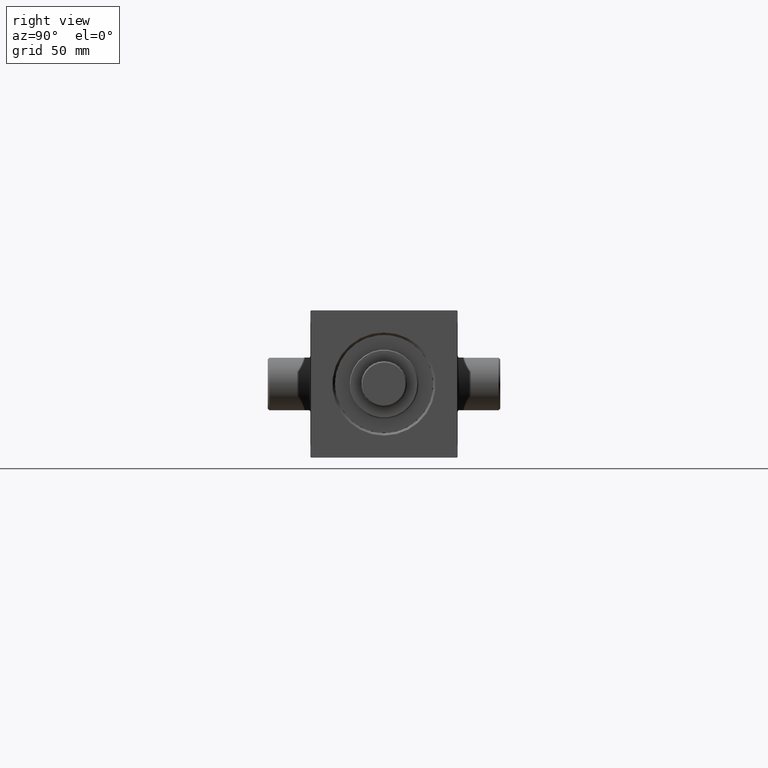
[diagram: clean part render]
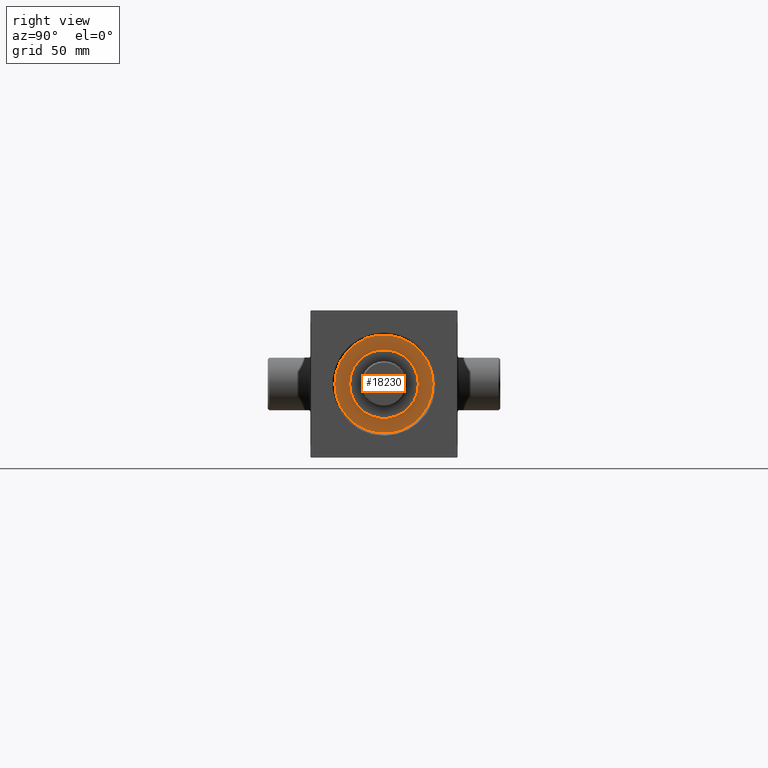
[diagram: same view with one face highlighted and labeled with its STEP entity id]
A machine part, right view. The second image highlights one B-rep face of the part: STEP entity #18230.
In plain terms, the highlighted planar face has unit normal (1, 0, 0).
Its self-contained STEP definition (entity closure, byte-faithful):
#669 = ORIENTED_EDGE ( 'NONE', *, *, #15305, .F. ) ;
#907 = EDGE_CURVE ( 'NONE', #25124, #30821, #35209, .T. ) ;
#2016 = FACE_OUTER_BOUND ( 'NONE', #9283, .T. ) ;
#2907 = DIRECTION ( 'NONE',  ( 0.000000000000000000, 0.000000000000000000, 1.000000000000000000 ) ) ;
#3394 = CARTESIAN_POINT ( 'NONE',  ( -21.00000000000000000, 0.000000000000000000, 26.69999999999999929 ) ) ;
#4190 = VERTEX_POINT ( 'NONE', #37666 ) ;
#4619 = CIRCLE ( 'NONE', #23454, 21.00000000000000000 ) ;
#6250 = EDGE_CURVE ( 'NONE', #7313, #4190, #27861, .T. ) ;
#7260 = ORIENTED_EDGE ( 'NONE', *, *, #6250, .F. ) ;
#7313 = VERTEX_POINT ( 'NONE', #3394 ) ;
#7981 = CARTESIAN_POINT ( 'NONE',  ( 0.000000000000000000, 0.000000000000000000, 26.69999999999999929 ) ) ;
#8436 = DIRECTION ( 'NONE',  ( 0.000000000000000000, 0.000000000000000000, 1.000000000000000000 ) ) ;
#9115 = CARTESIAN_POINT ( 'NONE',  ( 0.000000000000000000, 0.000000000000000000, 26.69999999999999929 ) ) ;
#9283 = EDGE_LOOP ( 'NONE', ( #30496, #37522 ) ) ;
#11498 = DIRECTION ( 'NONE',  ( 1.000000000000000000, 0.000000000000000000, 0.000000000000000000 ) ) ;
#11701 = EDGE_LOOP ( 'NONE', ( #7260, #669 ) ) ;
#15305 = EDGE_CURVE ( 'NONE', #4190, #7313, #4619, .T. ) ;
#15372 = CIRCLE ( 'NONE', #41807, 30.00000000000000000 ) ;
#16417 = PLANE ( 'NONE',  #22078 ) ;
#18230 = ADVANCED_FACE ( 'NONE', ( #41483, #2016 ), #16417, .T. ) ;
#19283 = DIRECTION ( 'NONE',  ( 0.000000000000000000, 0.000000000000000000, 1.000000000000000000 ) ) ;
#20855 = CARTESIAN_POINT ( 'NONE',  ( 0.000000000000000000, 0.000000000000000000, 26.69999999999999929 ) ) ;
#22078 = AXIS2_PLACEMENT_3D ( 'NONE', #9115, #23506, #45276 ) ;
#22725 = DIRECTION ( 'NONE',  ( 0.000000000000000000, 0.000000000000000000, 1.000000000000000000 ) ) ;
#23454 = AXIS2_PLACEMENT_3D ( 'NONE', #7981, #8436, #37247 ) ;
#23506 = DIRECTION ( 'NONE',  ( 0.000000000000000000, 0.000000000000000000, 1.000000000000000000 ) ) ;
#25124 = VERTEX_POINT ( 'NONE', #44625 ) ;
#27861 = CIRCLE ( 'NONE', #39957, 21.00000000000000000 ) ;
#29112 = DIRECTION ( 'NONE',  ( 1.000000000000000000, 0.000000000000000000, 0.000000000000000000 ) ) ;
#29576 = DIRECTION ( 'NONE',  ( 1.000000000000000000, 0.000000000000000000, 0.000000000000000000 ) ) ;
#30274 = CARTESIAN_POINT ( 'NONE',  ( 0.000000000000000000, 0.000000000000000000, 26.69999999999999929 ) ) ;
#30496 = ORIENTED_EDGE ( 'NONE', *, *, #907, .T. ) ;
#30821 = VERTEX_POINT ( 'NONE', #36590 ) ;
#35209 = CIRCLE ( 'NONE', #39748, 30.00000000000000000 ) ;
#36590 = CARTESIAN_POINT ( 'NONE',  ( 30.00000000000000000, 3.673940397442059178E-15, 26.69999999999999929 ) ) ;
#37247 = DIRECTION ( 'NONE',  ( 1.000000000000000000, 0.000000000000000000, 0.000000000000000000 ) ) ;
#37522 = ORIENTED_EDGE ( 'NONE', *, *, #37847, .T. ) ;
#37666 = CARTESIAN_POINT ( 'NONE',  ( 21.00000000000000000, 2.571758278209441661E-15, 26.69999999999999929 ) ) ;
#37847 = EDGE_CURVE ( 'NONE', #30821, #25124, #15372, .T. ) ;
#39748 = AXIS2_PLACEMENT_3D ( 'NONE', #20855, #2907, #29112 ) ;
#39957 = AXIS2_PLACEMENT_3D ( 'NONE', #30274, #22725, #29576 ) ;
#41483 = FACE_BOUND ( 'NONE', #11701, .T. ) ;
#41807 = AXIS2_PLACEMENT_3D ( 'NONE', #44124, #19283, #11498 ) ;
#44124 = CARTESIAN_POINT ( 'NONE',  ( 0.000000000000000000, 0.000000000000000000, 26.69999999999999929 ) ) ;
#44625 = CARTESIAN_POINT ( 'NONE',  ( -30.00000000000000000, 0.000000000000000000, 26.69999999999999929 ) ) ;
#45276 = DIRECTION ( 'NONE',  ( 1.000000000000000000, 0.000000000000000000, -0.000000000000000000 ) ) ;